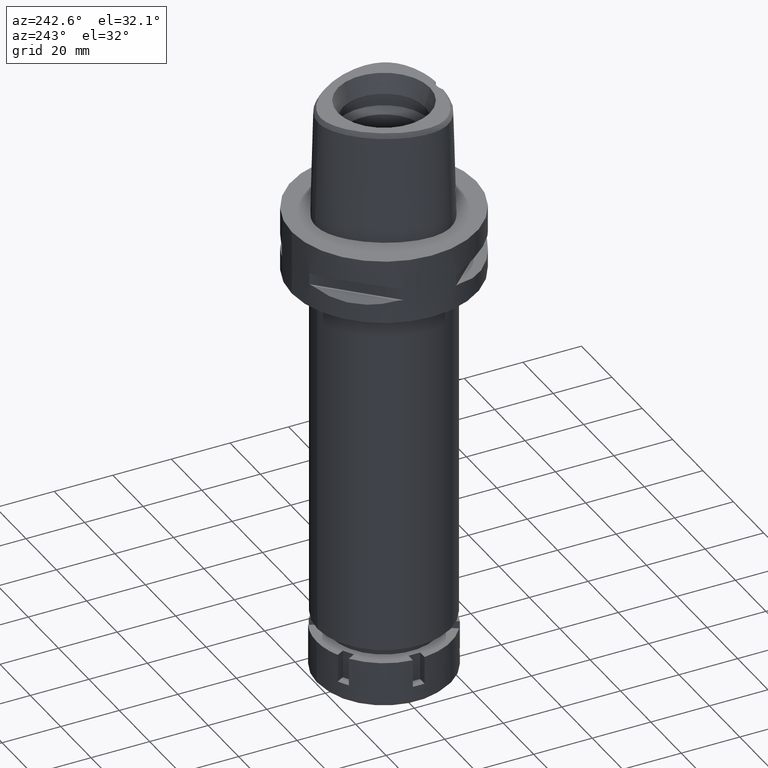
[diagram: clean part render]
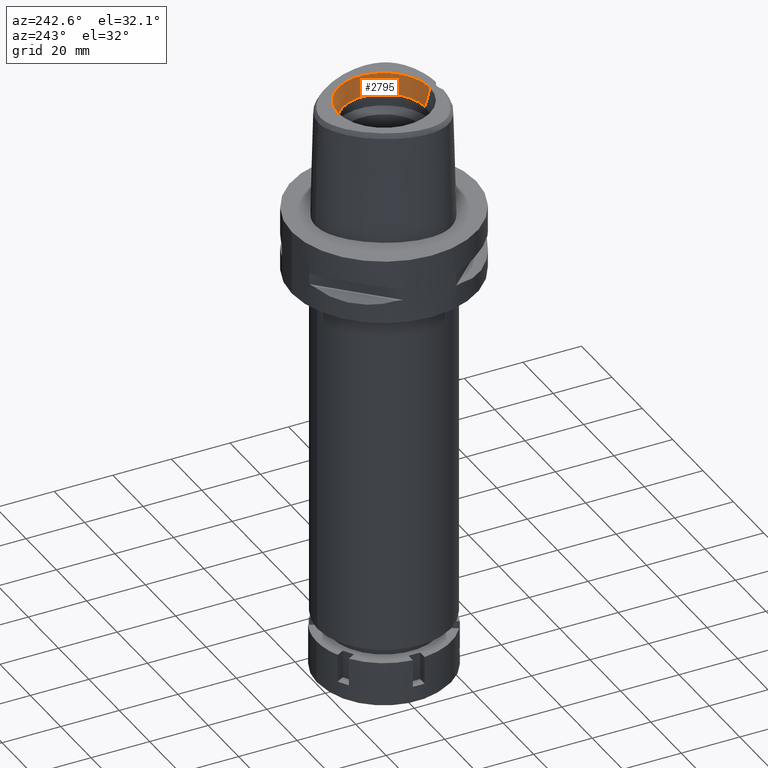
[diagram: same view with one face highlighted and labeled with its STEP entity id]
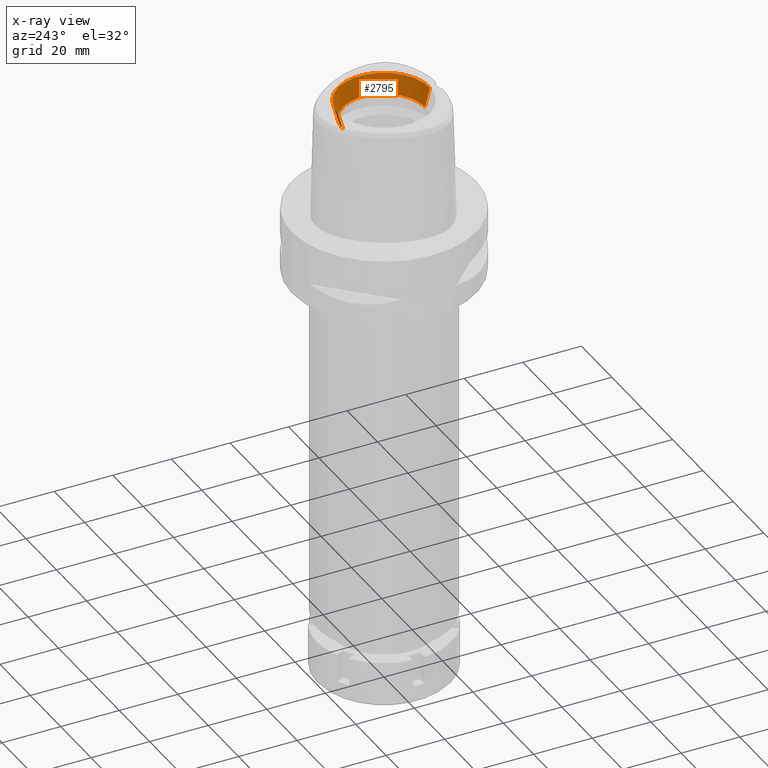
[diagram: x-ray of the same camera — body ghosted, the highlighted face saturated]
A machine part, auxiliary view. The second image highlights one B-rep face of the part: STEP entity #2795.
The next image is the same camera in x-ray: the body ghosted, the highlighted face saturated — about 0% of this face is hidden behind the body in this view.
In plain terms, the highlighted conical surface has half-angle 15 deg.
Its self-contained STEP definition (entity closure, byte-faithful):
#72 = ORIENTED_EDGE ( 'NONE', *, *, #956, .T. ) ;
#132 = CIRCLE ( 'NONE', #2744, 15.71487483155999776 ) ;
#182 = LINE ( 'NONE', #5291, #2751 ) ;
#545 = VERTEX_POINT ( 'NONE', #5204 ) ;
#601 = AXIS2_PLACEMENT_3D ( 'NONE', #5168, #1310, #2604 ) ;
#796 = DIRECTION ( 'NONE',  ( 0.0000000000000000000, -1.000000000000000000, 0.0000000000000000000 ) ) ;
#846 = ORIENTED_EDGE ( 'NONE', *, *, #1379, .F. ) ;
#956 = EDGE_CURVE ( 'NONE', #1984, #1719, #132, .T. ) ;
#966 = AXIS2_PLACEMENT_3D ( 'NONE', #2337, #1948, #3642 ) ;
#1286 = DIRECTION ( 'NONE',  ( 0.0000000000000000000, -0.2588190451025869088, 0.9659258262890505486 ) ) ;
#1310 = DIRECTION ( 'NONE',  ( 0.0000000000000000000, 0.0000000000000000000, 1.000000000000000000 ) ) ;
#1379 = EDGE_CURVE ( 'NONE', #2872, #1719, #182, .T. ) ;
#1719 = VERTEX_POINT ( 'NONE', #5368 ) ;
#1731 = LINE ( 'NONE', #4808, #2849 ) ;
#1948 = DIRECTION ( 'NONE',  ( 0.0000000000000000000, 0.0000000000000000000, 1.000000000000000000 ) ) ;
#1971 = DIRECTION ( 'NONE',  ( 0.0000000000000000000, 0.2588190451025869088, 0.9659258262890505486 ) ) ;
#1984 = VERTEX_POINT ( 'NONE', #4665 ) ;
#2337 = CARTESIAN_POINT ( 'NONE',  ( 0.0000000000000000000, 0.0000000000000000000, 31.60000000000000142 ) ) ;
#2604 = DIRECTION ( 'NONE',  ( 0.0000000000000000000, 1.000000000000000000, 0.0000000000000000000 ) ) ;
#2691 = EDGE_CURVE ( 'NONE', #545, #1984, #1731, .T. ) ;
#2744 = AXIS2_PLACEMENT_3D ( 'NONE', #4256, #2904, #796 ) ;
#2751 = VECTOR ( 'NONE', #1971, 1000.000000000000000 ) ;
#2795 = ADVANCED_FACE ( 'NONE', ( #5116 ), #3312, .F. ) ;
#2849 = VECTOR ( 'NONE', #1286, 1000.000000000000000 ) ;
#2872 = VERTEX_POINT ( 'NONE', #5281 ) ;
#2904 = DIRECTION ( 'NONE',  ( 0.0000000000000000000, 0.0000000000000000000, 1.000000000000000000 ) ) ;
#3165 = ORIENTED_EDGE ( 'NONE', *, *, #2691, .T. ) ;
#3312 = CONICAL_SURFACE ( 'NONE', #601, 14.85743741577999977, 0.2617993877991000029 ) ;
#3417 = CIRCLE ( 'NONE', #966, 14.00000000000000000 ) ;
#3642 = DIRECTION ( 'NONE',  ( 0.0000000000000000000, -1.000000000000000000, 0.0000000000000000000 ) ) ;
#3737 = EDGE_LOOP ( 'NONE', ( #846, #4569, #3165, #72 ) ) ;
#3775 = EDGE_CURVE ( 'NONE', #545, #2872, #3417, .T. ) ;
#4256 = CARTESIAN_POINT ( 'NONE',  ( 0.0000000000000000000, 0.0000000000000000000, 38.00000000000000000 ) ) ;
#4569 = ORIENTED_EDGE ( 'NONE', *, *, #3775, .F. ) ;
#4665 = CARTESIAN_POINT ( 'NONE',  ( 0.0000000000000000000, -15.71487483155999776, 38.00000000000000000 ) ) ;
#4808 = CARTESIAN_POINT ( 'NONE',  ( 0.0000000000000000000, -14.00000000000000000, 31.60000000000000142 ) ) ;
#5116 = FACE_OUTER_BOUND ( 'NONE', #3737, .T. ) ;
#5168 = CARTESIAN_POINT ( 'NONE',  ( 0.0000000000000000000, 0.0000000000000000000, 34.79999999999999716 ) ) ;
#5204 = CARTESIAN_POINT ( 'NONE',  ( 0.0000000000000000000, -14.00000000000000000, 31.60000000000000142 ) ) ;
#5281 = CARTESIAN_POINT ( 'NONE',  ( 0.0000000000000000000, 14.00000000000000000, 31.60000000000000142 ) ) ;
#5291 = CARTESIAN_POINT ( 'NONE',  ( 0.0000000000000000000, 14.00000000000000000, 31.60000000000000142 ) ) ;
#5368 = CARTESIAN_POINT ( 'NONE',  ( 0.0000000000000000000, 15.71487483155999776, 38.00000000000000000 ) ) ;